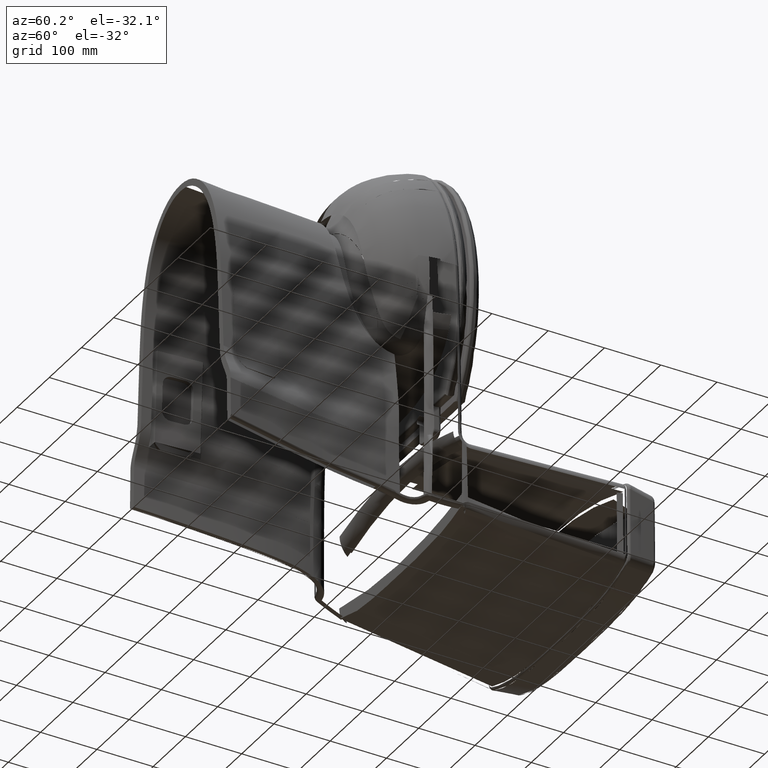
[diagram: clean part render]
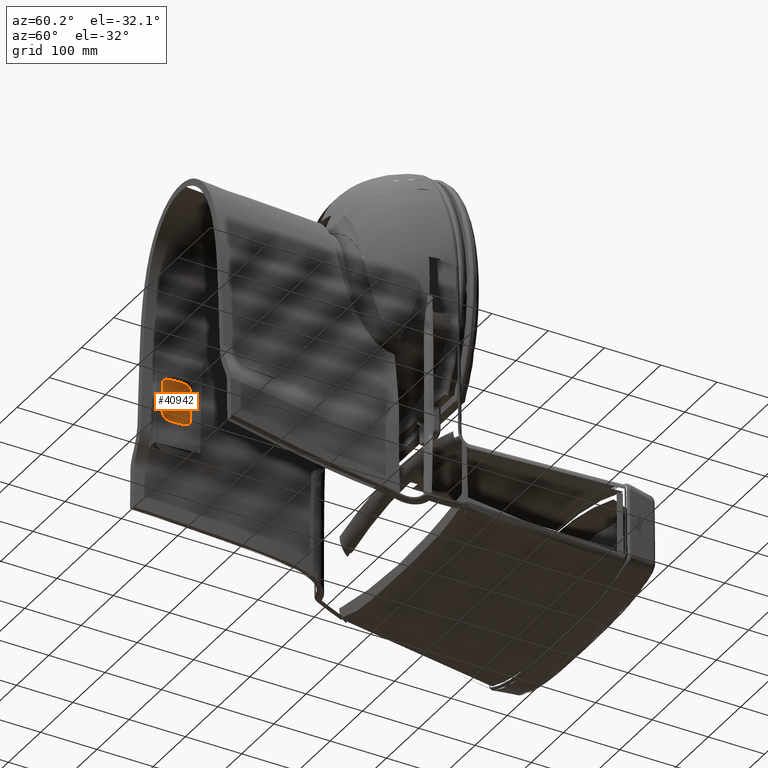
[diagram: same view with one face highlighted and labeled with its STEP entity id]
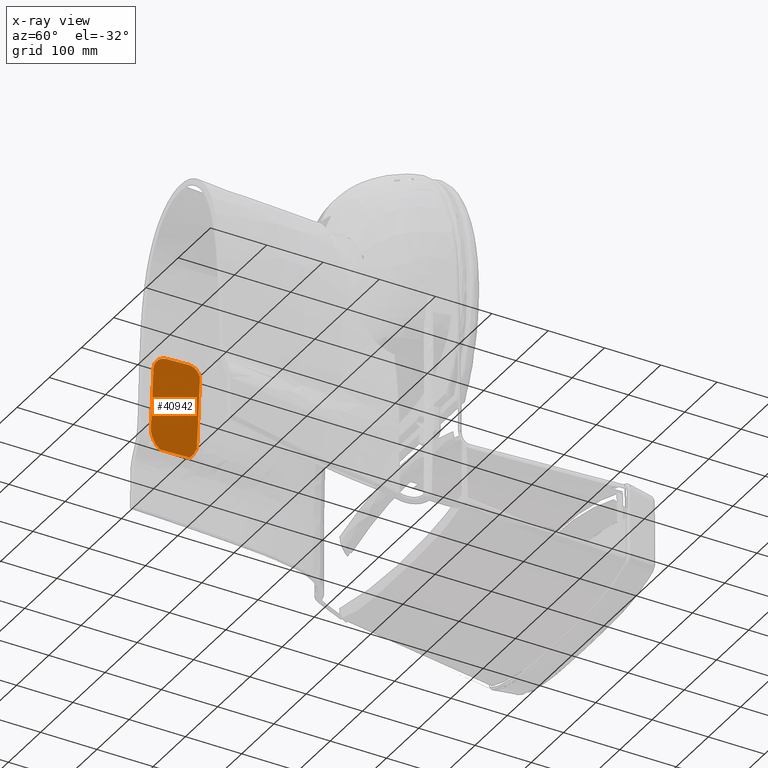
[diagram: x-ray of the same camera — body ghosted, the highlighted face saturated]
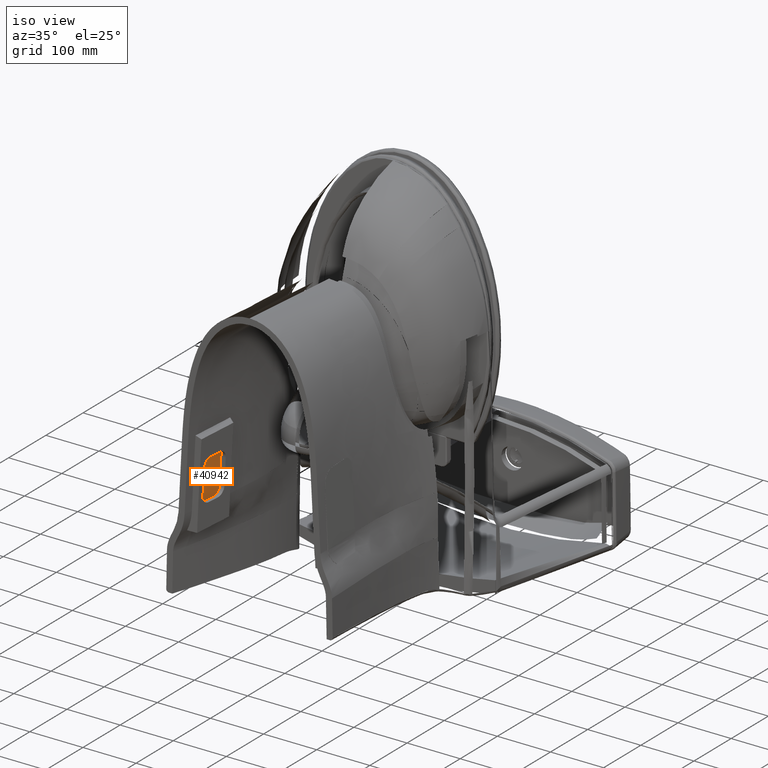
[diagram: same view with one face highlighted and labeled with its STEP entity id]
A machine part, auxiliary view. The second image highlights one B-rep face of the part: STEP entity #40942.
The next image is the same camera in x-ray: the body ghosted, the highlighted face saturated — about 0% of this face is hidden behind the body in this view.
A second angle (iso view) of the same face is appended — the face is thin or edge-on in the first view.
In plain terms, the highlighted planar face has unit normal (0.9948, -0.052, -0.0872).
Its self-contained STEP definition (entity closure, byte-faithful):
#3773 = ORIENTED_EDGE ( 'NONE', *, *, #119843, .T. ) ;
#5856 = AXIS2_PLACEMENT_3D ( 'NONE', #124667, #39238, #95695 ) ;
#8794 = DIRECTION ( 'NONE',  ( 0.08729390108117397700, -0.9961826011500252200, 1.267575400385868000E-015 ) ) ;
#10521 = VERTEX_POINT ( 'NONE', #176419 ) ;
#11384 = ORIENTED_EDGE ( 'NONE', *, *, #93415, .T. ) ;
#13973 = CARTESIAN_POINT ( 'NONE',  ( -4.765044009993800100, -3.364830813167912500, -14.71266179156310900 ) ) ;
#14853 = DIRECTION ( 'NONE',  ( 0.08729390108117400500, -0.9961826011500252200, 0.0000000000000000000 ) ) ;
#16812 = DIRECTION ( 'NONE',  ( 0.9948324850063071700, 0.08717559254520690400, -0.05204558425618607100 ) ) ;
#17095 = AXIS2_PLACEMENT_3D ( 'NONE', #110891, #22966, #8794 ) ;
#17485 = CARTESIAN_POINT ( 'NONE',  ( -5.051182248490824200, 0.9860468894618403800, -12.89443401464850300 ) ) ;
#19082 = CIRCLE ( 'NONE', #5856, 0.8065136091368113600 ) ;
#22966 = DIRECTION ( 'NONE',  ( 0.9948324850063071700, 0.08717559254520690400, -0.05204558425618607100 ) ) ;
#23199 = CIRCLE ( 'NONE', #140224, 1.363043171718976800 ) ;
#27672 = AXIS2_PLACEMENT_3D ( 'NONE', #75610, #45563, #103944 ) ;
#28669 = DIRECTION ( 'NONE',  ( -0.05232402779929755400, 0.0009105080668251949900, -0.9986297447452277000 ) ) ;
#28747 = DIRECTION ( 'NONE',  ( -0.08700875180709091700, 0.9961925451635596000, 0.005467181131163478300 ) ) ;
#29866 = ORIENTED_EDGE ( 'NONE', *, *, #68076, .T. ) ;
#31097 = EDGE_CURVE ( 'NONE', #63431, #79190, #99817, .T. ) ;
#32406 = VERTEX_POINT ( 'NONE', #124160 ) ;
#33941 = CARTESIAN_POINT ( 'NONE',  ( -4.985898830924010200, 1.052894019524749800, -11.53459717716935300 ) ) ;
#35283 = ORIENTED_EDGE ( 'NONE', *, *, #55832, .T. ) ;
#39238 = DIRECTION ( 'NONE',  ( 0.9948324850063071700, 0.08717559254520690400, -0.05204558425618607100 ) ) ;
#39848 = CARTESIAN_POINT ( 'NONE',  ( -4.985898830923849400, 1.052894019515872000, -11.53459717716969600 ) ) ;
#40942 = ADVANCED_FACE ( 'NONE', ( #118050 ), #47451, .T. ) ;
#41497 = CARTESIAN_POINT ( 'NONE',  ( -4.566444989398923400, -4.232002642193026400, -12.36901360531095600 ) ) ;
#45563 = DIRECTION ( 'NONE',  ( 0.9948324850063071700, 0.08717559254520690400, -0.05204558425618607800 ) ) ;
#46080 = VECTOR ( 'NONE', #58940, 39.37007874015748900 ) ;
#46511 = DIRECTION ( 'NONE',  ( 0.05232402779931076600, -0.0009105080669735722800, 0.9986297447452268100 ) ) ;
#47007 = DIRECTION ( 'NONE',  ( 0.08729390108117413000, -0.9961826011500252200, -1.603381639170852300E-015 ) ) ;
#47451 = PLANE ( 'NONE',  #27672 ) ;
#47618 = EDGE_LOOP ( 'NONE', ( #82344, #88456, #35283, #3773, #11384, #166286, #186969, #29866, #94209 ) ) ;
#50382 = EDGE_CURVE ( 'NONE', #125427, #63431, #19082, .T. ) ;
#55832 = EDGE_CURVE ( 'NONE', #79190, #180384, #83168, .T. ) ;
#58940 = DIRECTION ( 'NONE',  ( 0.08700875180708772500, -0.9961925451635596000, -0.005467181131224570000 ) ) ;
#61288 = CARTESIAN_POINT ( 'NONE',  ( -4.644056227897994700, -4.230652102839176400, -13.85026217409266100 ) ) ;
#63431 = VERTEX_POINT ( 'NONE', #96515 ) ;
#68076 = EDGE_CURVE ( 'NONE', #117993, #85492, #23199, .T. ) ;
#75610 = CARTESIAN_POINT ( 'NONE',  ( -4.877803785952756300, -1.118263687754330800, -13.10505696936220600 ) ) ;
#79190 = VERTEX_POINT ( 'NONE', #187254 ) ;
#82344 = ORIENTED_EDGE ( 'NONE', *, *, #50382, .T. ) ;
#83168 = LINE ( 'NONE', #41497, #115447 ) ;
#85492 = VERTEX_POINT ( 'NONE', #39848 ) ;
#87419 = VECTOR ( 'NONE', #46511, 39.37007874015748900 ) ;
#88456 = ORIENTED_EDGE ( 'NONE', *, *, #31097, .T. ) ;
#89221 = EDGE_CURVE ( 'NONE', #10521, #117993, #172502, .T. ) ;
#91332 = CARTESIAN_POINT ( 'NONE',  ( -5.198347428046421500, 2.012593167522160400, -13.98799309431500500 ) ) ;
#93415 = EDGE_CURVE ( 'NONE', #93838, #32406, #135526, .T. ) ;
#93838 = VERTEX_POINT ( 'NONE', #166692 ) ;
#94209 = ORIENTED_EDGE ( 'NONE', *, *, #161887, .T. ) ;
#95695 = DIRECTION ( 'NONE',  ( 0.08729390108117400500, -0.9961826011500252200, 0.0000000000000000000 ) ) ;
#96515 = CARTESIAN_POINT ( 'NONE',  ( -4.566215012627276700, -4.231994622213184300, -12.36460424932594300 ) ) ;
#99817 = CIRCLE ( 'NONE', #99943, 0.8065136091368113600 ) ;
#99943 = AXIS2_PLACEMENT_3D ( 'NONE', #115664, #145214, #14853 ) ;
#101756 = CIRCLE ( 'NONE', #17095, 1.724140744815748200 ) ;
#103944 = DIRECTION ( 'NONE',  ( -0.08729390108117386600, 0.9961826011500251000, 0.0000000000000000000 ) ) ;
#107530 = CARTESIAN_POINT ( 'NONE',  ( -4.594418691339542200, -3.429294134347960400, -11.55919576970072300 ) ) ;
#110891 = CARTESIAN_POINT ( 'NONE',  ( -5.023870094179047300, 0.6162447678230088500, -12.99178522717216600 ) ) ;
#115447 = VECTOR ( 'NONE', #28669, 39.37007874015748100 ) ;
#115664 = CARTESIAN_POINT ( 'NONE',  ( -4.636618731843886300, -3.428559797200380700, -12.36460424932594300 ) ) ;
#117993 = VERTEX_POINT ( 'NONE', #127981 ) ;
#118050 = FACE_OUTER_BOUND ( 'NONE', #47618, .T. ) ;
#119843 = EDGE_CURVE ( 'NONE', #180384, #93838, #164268, .T. ) ;
#121432 = DIRECTION ( 'NONE',  ( 0.08729390108117415800, -0.9961826011500252200, 0.0000000000000000000 ) ) ;
#124160 = CARTESIAN_POINT ( 'NONE',  ( -5.137202192643832700, 0.8961337389806240900, -14.68927729113467800 ) ) ;
#124667 = CARTESIAN_POINT ( 'NONE',  ( -4.636618731843886300, -3.428559797200380700, -12.36460424932594300 ) ) ;
#125427 = VERTEX_POINT ( 'NONE', #107530 ) ;
#127981 = CARTESIAN_POINT ( 'NONE',  ( -5.094010436581325700, 2.010777564320019600, -11.99667041643373900 ) ) ;
#135526 = LINE ( 'NONE', #13973, #156262 ) ;
#137515 = EDGE_CURVE ( 'NONE', #32406, #10521, #101756, .T. ) ;
#140224 = AXIS2_PLACEMENT_3D ( 'NONE', #17485, #162660, #47007 ) ;
#140236 = LINE ( 'NONE', #33941, #46080 ) ;
#143666 = AXIS2_PLACEMENT_3D ( 'NONE', #149687, #16812, #121432 ) ;
#145214 = DIRECTION ( 'NONE',  ( 0.9948324850063071700, 0.08717559254520690400, -0.05204558425618607100 ) ) ;
#149687 = CARTESIAN_POINT ( 'NONE',  ( -4.719609130337947700, -3.365621440843808500, -13.84551481943980800 ) ) ;
#156262 = VECTOR ( 'NONE', #28747, 39.37007874015748900 ) ;
#161887 = EDGE_CURVE ( 'NONE', #85492, #125427, #140236, .T. ) ;
#162660 = DIRECTION ( 'NONE',  ( 0.9948324850063071700, 0.08717559254520690400, -0.05204558425618607100 ) ) ;
#164268 = CIRCLE ( 'NONE', #143666, 0.8683368152042518800 ) ;
#166286 = ORIENTED_EDGE ( 'NONE', *, *, #137515, .T. ) ;
#166692 = CARTESIAN_POINT ( 'NONE',  ( -4.765044009995977000, -3.364830813168186100, -14.71266179156146600 ) ) ;
#172502 = LINE ( 'NONE', #91332, #87419 ) ;
#176419 = CARTESIAN_POINT ( 'NONE',  ( -5.198347428046838000, 2.012593167522073800, -13.98799309431515100 ) ) ;
#180384 = VERTEX_POINT ( 'NONE', #61288 ) ;
#186969 = ORIENTED_EDGE ( 'NONE', *, *, #89221, .T. ) ;
#187254 = CARTESIAN_POINT ( 'NONE',  ( -4.566444989397537000, -4.232002642194141000, -12.36901360531116200 ) ) ;